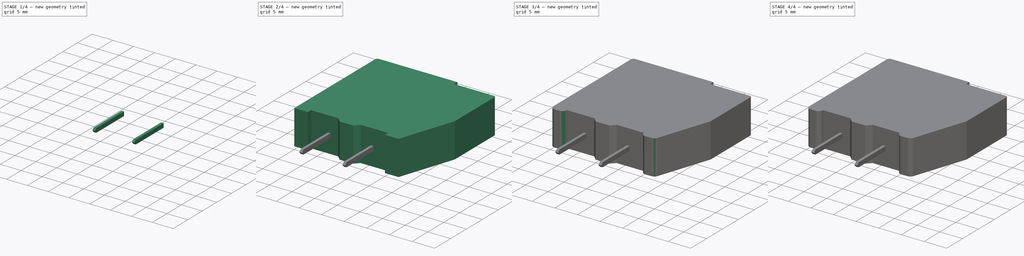
[diagram: build sequence overview — one tinted view per stage of 4, left to right]
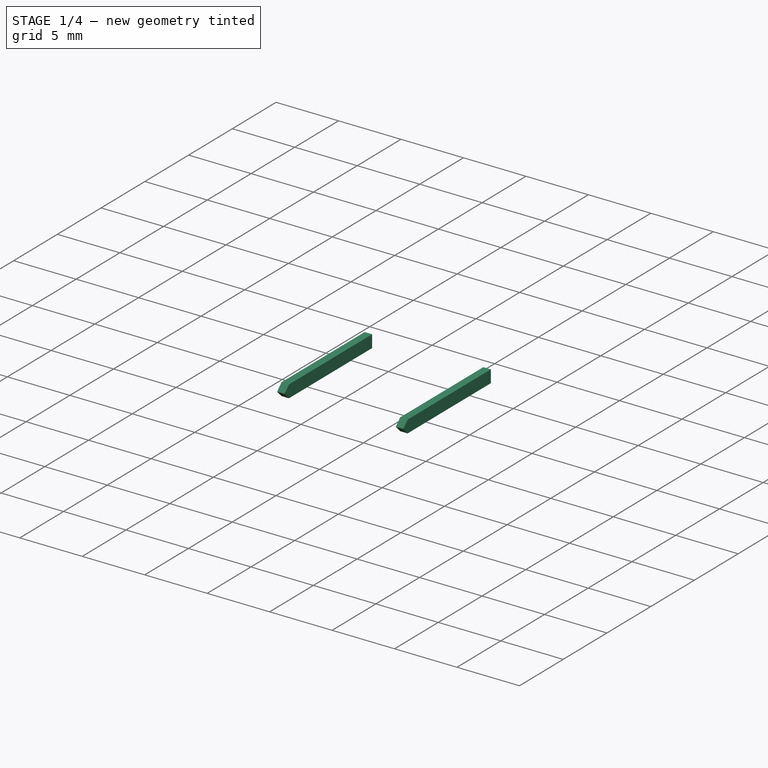
[diagram: stage 1 of 4 — iso view after this stage's code; geometry added in this stage tinted green]
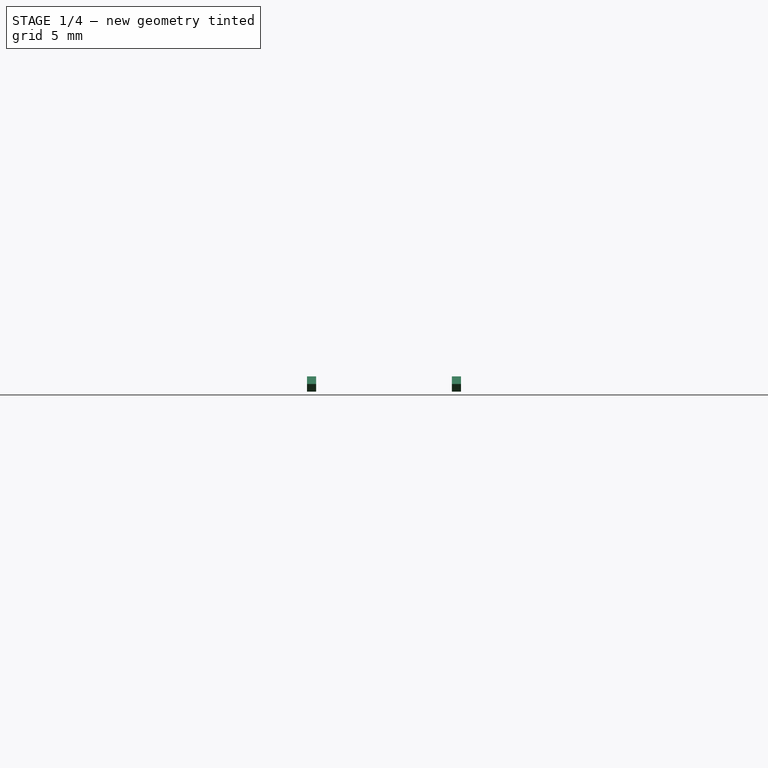
[diagram: stage 1 of 4 — front view after this stage's code; geometry added in this stage tinted green]
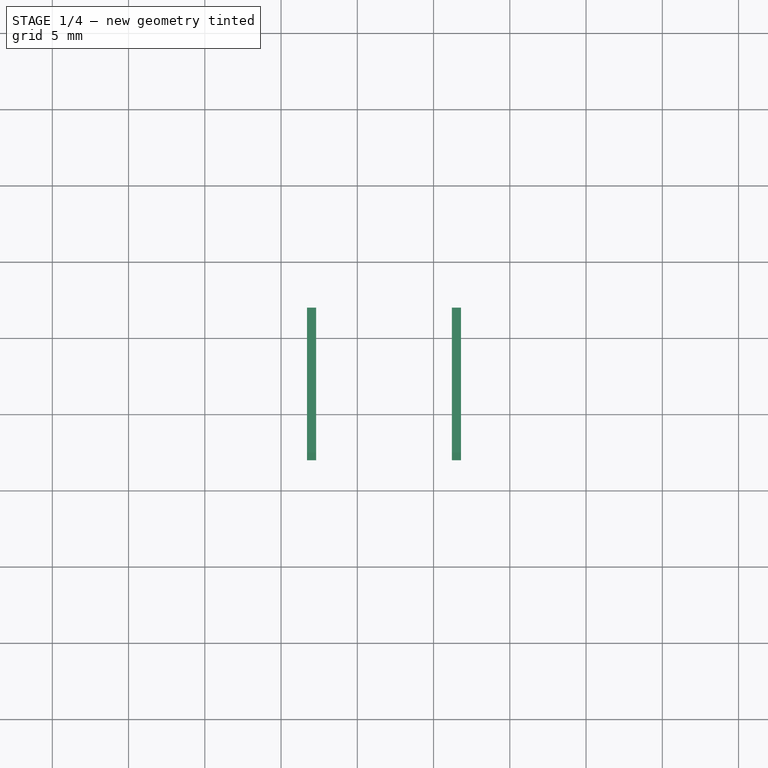
[diagram: stage 1 of 4 — top view after this stage's code; geometry added in this stage tinted green]
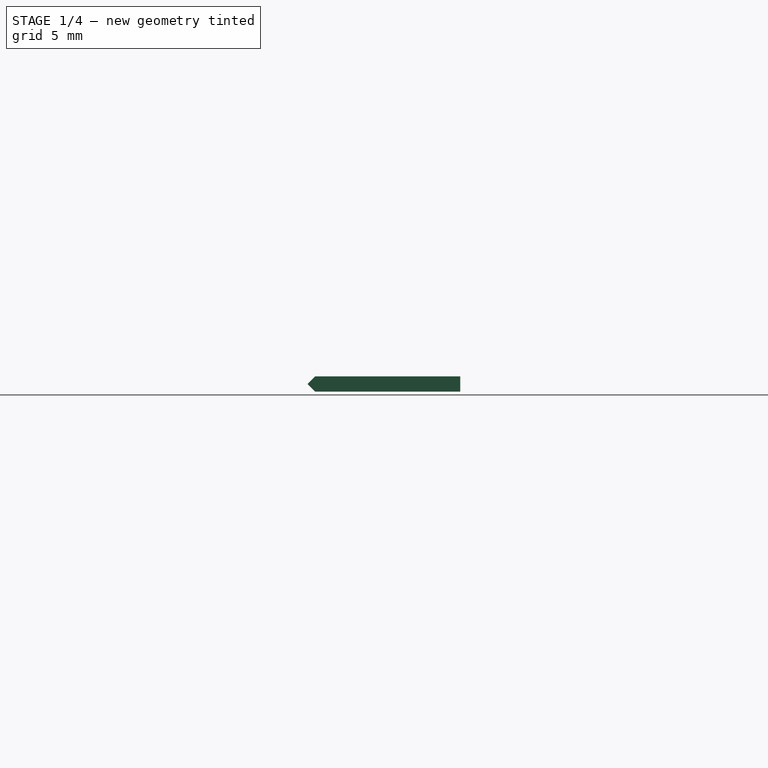
[diagram: stage 1 of 4 — right view after this stage's code; geometry added in this stage tinted green]
FCSTD DOCUMENT  (FreeCAD 0.18R4 (GitTag))
Label: connectorDG107V_7_62-01P_14_00AH
License: All rights reserved
LicenseURL: http://en.wikipedia.org/wiki/All_rights_reserved
objects: Sketcher::SketchObject×4, PartDesign::Pad×2, PartDesign::Fillet×2, PartDesign::Chamfer×2, PartDesign::Pocket×2, Part::FeaturePython×2, PartDesign::Draft×1, Spreadsheet::Sheet×1, App::DocumentObjectGroup×1
note: 19 computed .brp shape members not serialized (recipe doc carries the construction recipe); baked Part::Feature solids carry a one-line shape summary decoded from their .brp

FEATURE [App::DocumentObjectGroup] Group  label="body"
  Group = -> [Pad,Fillet,Chamfer,Fillet001,Pocket,Pocket001,Draft,Array]
FEATURE [Sketcher::SketchObject] Sketch004
  MapMode = 5
  Placement = pos=(0,2,0) rot=(1,0,0;1.5708rad)
  sketch-geometry (12):
    g0: LineSegment StartX=6.7 StartY=4.15 StartZ=0 EndX=7.3 EndY=4.15 EndZ=0
    g1: LineSegment StartX=7.3 StartY=4.15 StartZ=0 EndX=7.3 EndY=3.15 EndZ=0
    g2: LineSegment StartX=7.3 StartY=3.15 StartZ=0 EndX=6.7 EndY=3.15 EndZ=0
    g3: LineSegment StartX=6.7 StartY=3.15 StartZ=0 EndX=6.7 EndY=4.15 EndZ=0
    g4: LineSegment StartX=16.2 StartY=4.15 StartZ=0 EndX=16.8 EndY=4.15 EndZ=0
    g5: LineSegment StartX=16.8 StartY=4.15 StartZ=0 EndX=16.8 EndY=3.15 EndZ=0
    g6: LineSegment StartX=16.8 StartY=3.15 StartZ=0 EndX=16.2 EndY=3.15 EndZ=0
    g7: LineSegment StartX=16.2 StartY=3.15 StartZ=0 EndX=16.2 EndY=4.15 EndZ=0
    g8: GeomPoint [constr] X=7 Y=3.15 Z=0
    g9: GeomPoint [constr] X=16.5 Y=3.15 Z=0
    g10: LineSegment [constr] StartX=7.3 StartY=3.15 StartZ=0 EndX=16.2 EndY=3.15 EndZ=0
    g11: GeomPoint [constr] X=6.7 Y=3.65 Z=0
  constraints (32):
    c: Coincident(g0,g1)
    c: Coincident(g1,g2)
    c: Coincident(g2,g3)
    c: Coincident(g3,g0)
    c: Horizontal(g0)
    c: Horizontal(g2)
    c: Vertical(g1)
    c: Vertical(g3)
    c: Coincident(g4,g5)
    c: Coincident(g5,g6)
    c: Coincident(g6,g7)
    c: Coincident(g7,g4)
    c: Horizontal(g4)
    c: Horizontal(g6)
    c: Vertical(g5)
    c: Vertical(g7)
    c: DistanceY(g1,g1) = 1
    c: Equal(g1,g7)
    c: Equal(g0,g4)
    c: DistanceX(g0,g0) = 0.6
    c: PointOnObject(g8,g2)
    c: DistanceX(g2,g8) = 0.3
    c: DistanceX(g-1,g8) = 7
    c: PointOnObject(g9,g6)
    c: DistanceX(g6,g9) = 0.3
    c: DistanceX(g8,g9) = 9.5
    c: Coincident(g10,g1)
    c: Coincident(g10,g6)
    c: Horizontal(g10)
    c: PointOnObject(g11,g3)
    c: DistanceY(g11,g0) = 0.5
    c: DistanceY(g-1,g11) = 3.65
FEATURE [PartDesign::Pad] Pad001
  Length = 10
  Length2 = 100
  Placement = pos=(0,2,0) rot=(1,0,0;1.5708rad)
  Profile = -> Sketch004
  Type = 0
FEATURE [PartDesign::Chamfer] Chamfer001
  Base = -> Pad001 [Edge10,Edge4,Edge22,Edge16]
  Placement = pos=(0,2,0) rot=(1,0,0;1.5708rad)
  Size = 0.49
FEATURE [Part::FeaturePython] Array001  # Draft array (typed FeaturePython)
  Angle = 360
  ArrayType = 0
  Axis = (0,0,1)
  Base = -> Chamfer001
  Center = (0,0,0)
  Fuse = false
  IntervalAxis = (0,0,0)
  IntervalX = (1,0,0)
  IntervalY = (0,1,0)
  IntervalZ = (0,0,7.62)
  NumberPolar = 1
  NumberX = 1
  NumberY = 1
  NumberZ = 1
  expr: NumberZ = Spreadsheet.B1
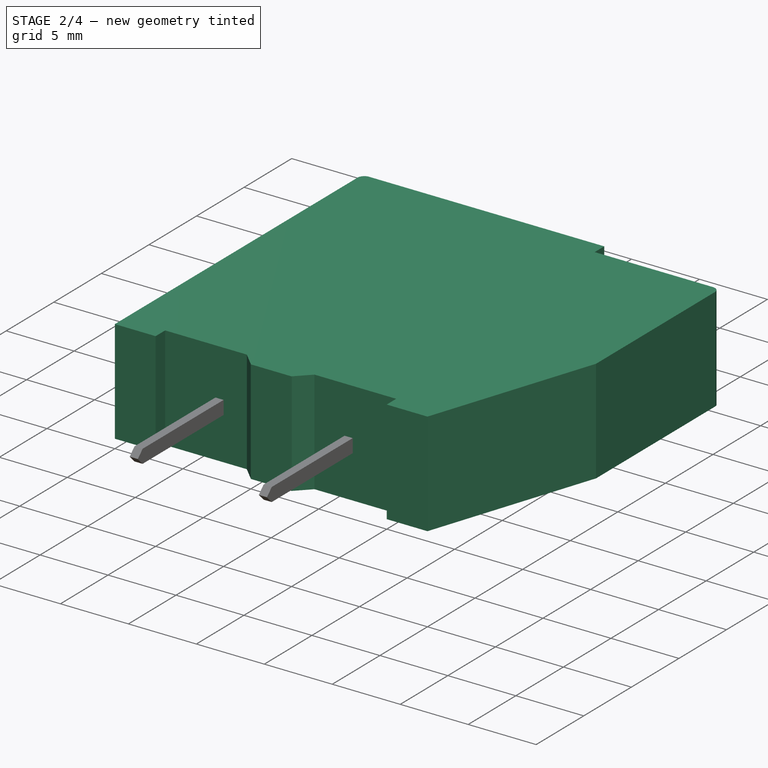
[diagram: stage 2 of 4 — iso view after this stage's code; geometry added in this stage tinted green]
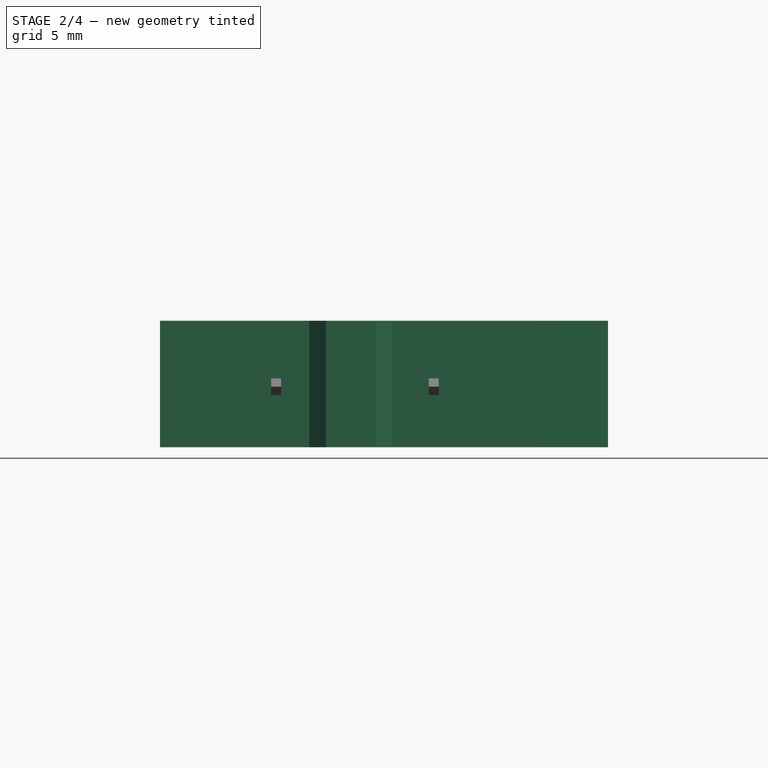
[diagram: stage 2 of 4 — front view after this stage's code; geometry added in this stage tinted green]
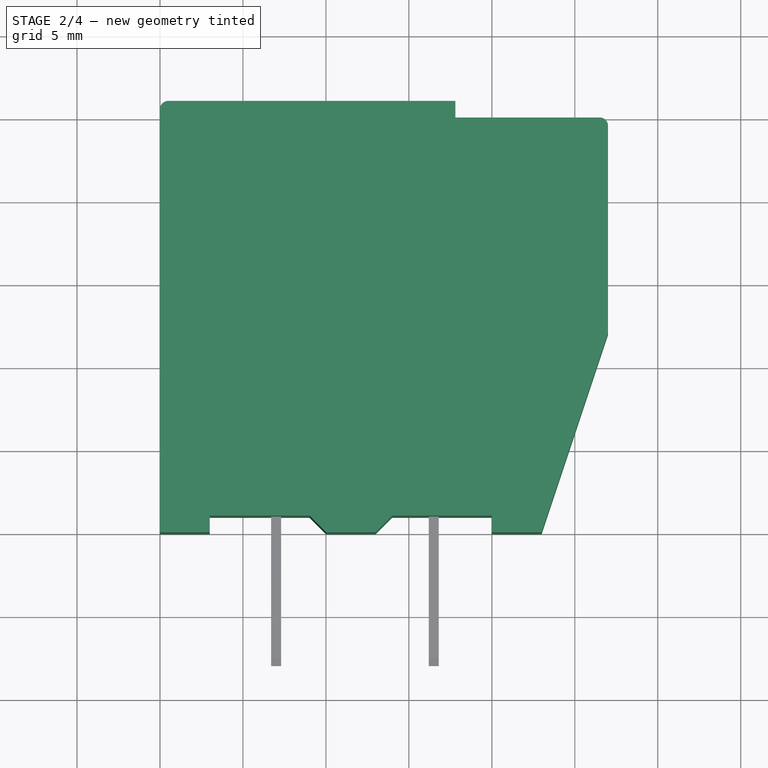
[diagram: stage 2 of 4 — top view after this stage's code; geometry added in this stage tinted green]
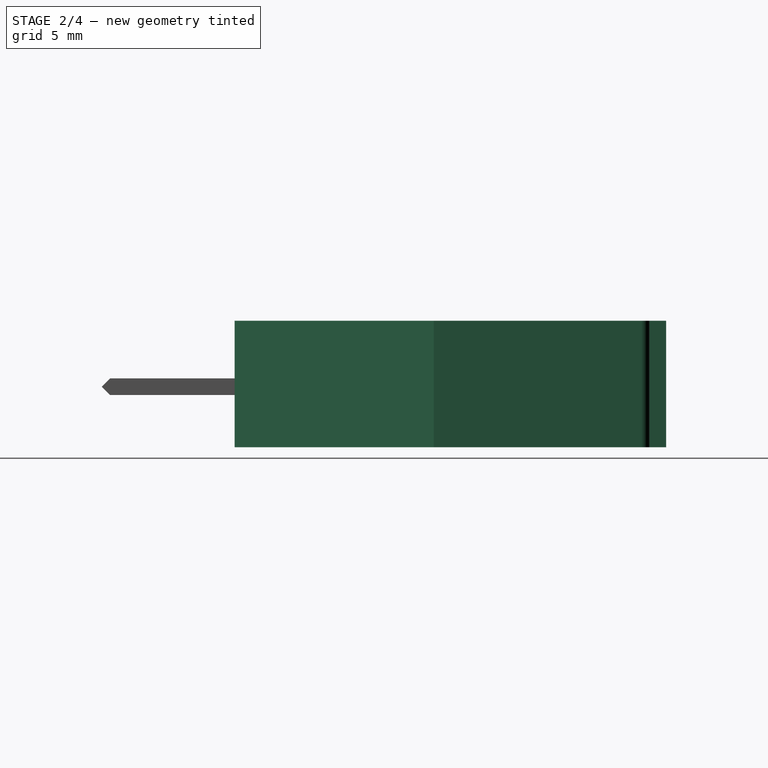
[diagram: stage 2 of 4 — right view after this stage's code; geometry added in this stage tinted green]
FEATURE [Sketcher::SketchObject] Sketch
  MapMode = 5
  sketch-geometry (15):
    g0: LineSegment StartX=0 StartY=26 StartZ=0 EndX=0 EndY=0 EndZ=0
    g1: LineSegment StartX=0 StartY=0 StartZ=0 EndX=3 EndY=0 EndZ=0
    g2: LineSegment StartX=3 StartY=0 StartZ=0 EndX=3 EndY=1 EndZ=0
    g3: LineSegment StartX=3 StartY=1 StartZ=0 EndX=10 EndY=1 EndZ=0
    g4: LineSegment StartX=10 StartY=1 StartZ=0 EndX=10 EndY=0 EndZ=0
    g5: LineSegment StartX=10 StartY=0 StartZ=0 EndX=13 EndY=0 EndZ=0
    g6: LineSegment StartX=13 StartY=0 StartZ=0 EndX=13 EndY=1 EndZ=0
    g7: LineSegment StartX=13 StartY=1 StartZ=0 EndX=20 EndY=1 EndZ=0
    g8: LineSegment StartX=20 StartY=1 StartZ=0 EndX=20 EndY=0 EndZ=0
    g9: LineSegment StartX=20 StartY=0 StartZ=0 EndX=23 EndY=0 EndZ=0
    g10: LineSegment StartX=23 StartY=0 StartZ=0 EndX=27 EndY=12 EndZ=0
    g11: LineSegment StartX=27 StartY=12 StartZ=0 EndX=27 EndY=25 EndZ=0
    g12: LineSegment StartX=27 StartY=25 StartZ=0 EndX=17.8 EndY=25 EndZ=0
    g13: LineSegment StartX=17.8 StartY=25 StartZ=0 EndX=17.8 EndY=26 EndZ=0
    g14: LineSegment StartX=17.8 StartY=26 StartZ=0 EndX=0 EndY=26 EndZ=0
  constraints (44):
    c: PointOnObject(g0,g-2)
    c: Coincident(g0,g-1)
    c: Coincident(g0,g1)
    c: Coincident(g1,g2)
    c: Coincident(g2,g3)
    c: Horizontal(g3)
    c: Coincident(g3,g4)
    c: PointOnObject(g4,g-1)
    c: Coincident(g4,g5)
    c: PointOnObject(g5,g-1)
    c: Coincident(g5,g6)
    c: Coincident(g6,g7)
    c: Horizontal(g7)
    c: Coincident(g7,g8)
    c: PointOnObject(g8,g-1)
    c: Vertical(g8)
    c: Coincident(g8,g9)
    c: Coincident(g9,g10)
    c: Coincident(g10,g11)
    c: Vertical(g11)
    c: Coincident(g11,g12)
    c: Horizontal(g12)
    c: Coincident(g12,g13)
    c: Coincident(g13,g14)
    c: Coincident(g14,g0)
    c: Horizontal(g14)
    c: Horizontal(g1)
    c: Vertical(g2)
    c: Vertical(g4)
    c: Horizontal(g9)
    c: Vertical(g13)
    c: DistanceY(g0,g0) = 26
    c: DistanceX(g0,g11) = 27
    c: Vertical(g6)
    c: DistanceY(g13,g13) = 1
    c: DistanceX(g14,g14) = 17.8
    c: Equal(g2,g6)
    c: DistanceY(g2,g2) = 1
    c: Equal(g1,g5)
    c: Equal(g5,g9)
    c: DistanceX(g1,g1) = 3
    c: DistanceX(g3,g3) = 7
    c: DistanceY(g11,g11) = 13
    c: Equal(g7,g3)
FEATURE [PartDesign::Pad] Pad
  Length = 7.62
  Length2 = 100
  Profile = -> Sketch
  Type = 0
FEATURE [PartDesign::Fillet] Fillet
  Base = -> Pad [Edge35,Edge1]
  Radius = 0.5
FEATURE [PartDesign::Chamfer] Chamfer
  Base = -> Fillet [Edge42,Edge48]
  Size = 0.99
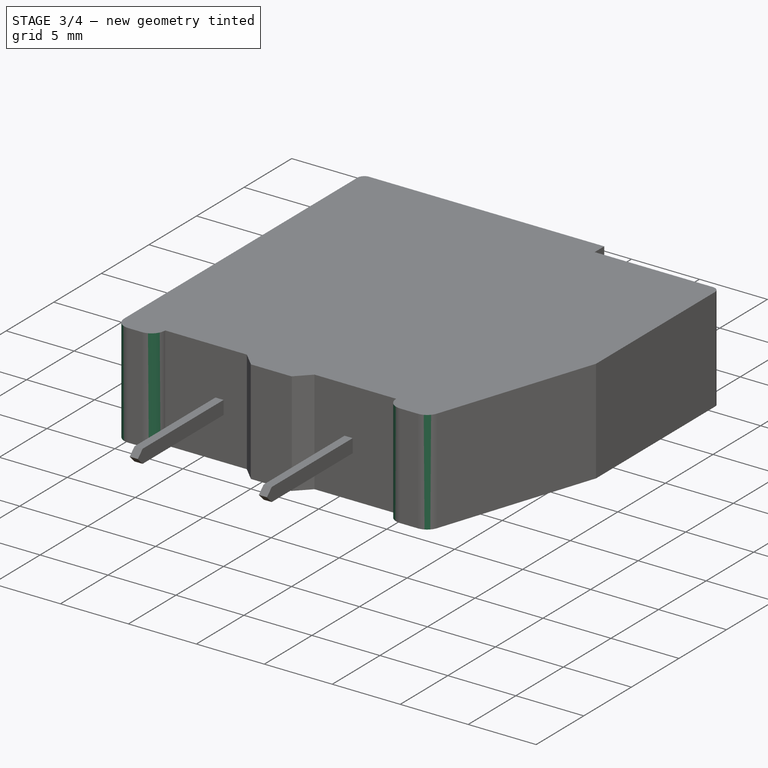
[diagram: stage 3 of 4 — iso view after this stage's code; geometry added in this stage tinted green]
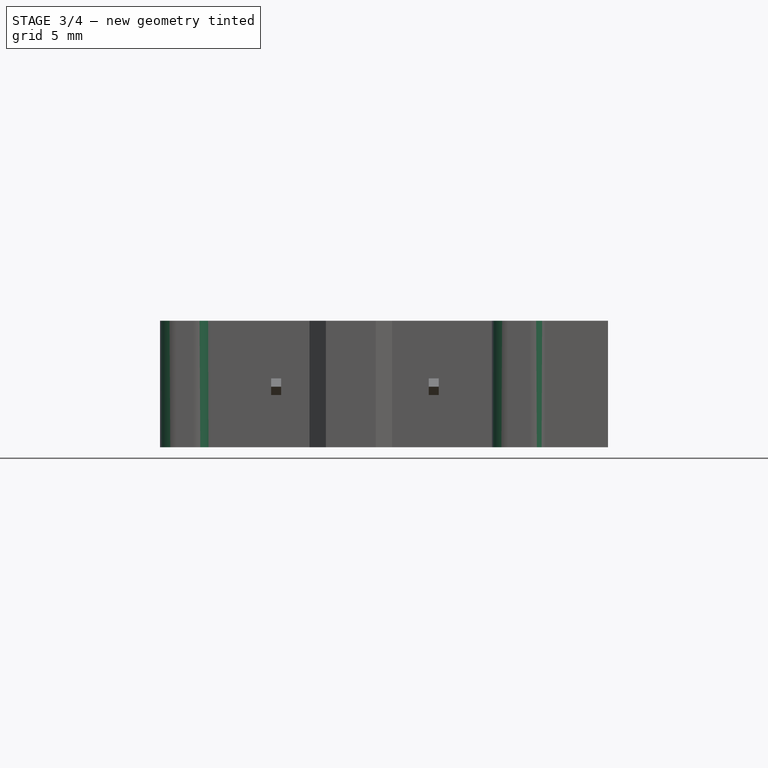
[diagram: stage 3 of 4 — front view after this stage's code; geometry added in this stage tinted green]
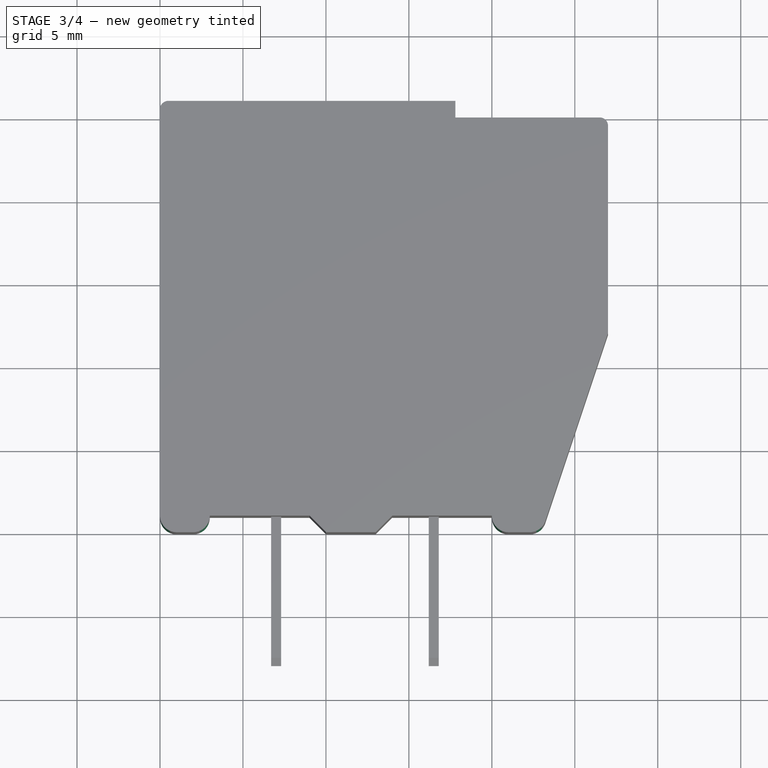
[diagram: stage 3 of 4 — top view after this stage's code; geometry added in this stage tinted green]
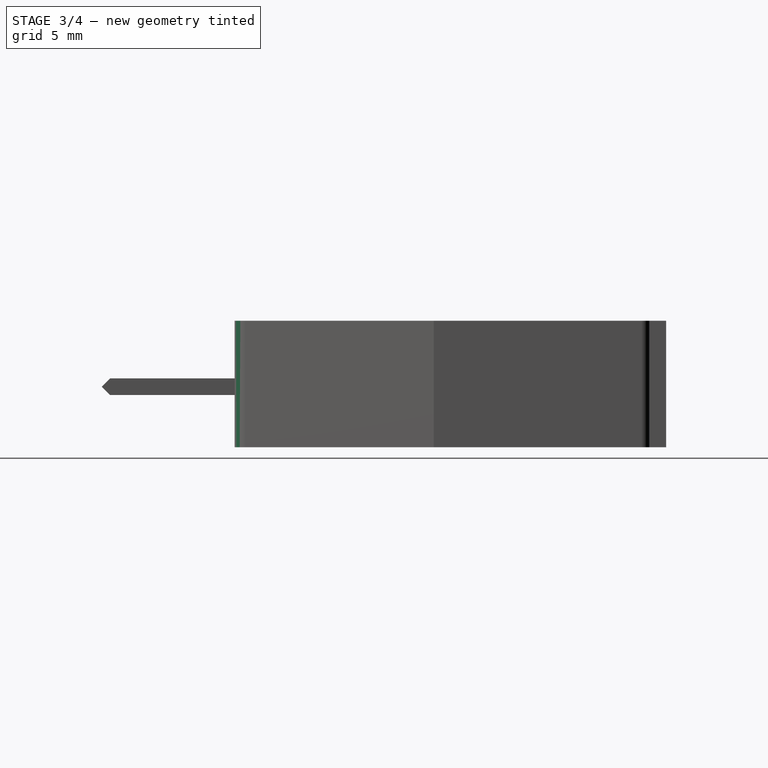
[diagram: stage 3 of 4 — right view after this stage's code; geometry added in this stage tinted green]
FEATURE [PartDesign::Fillet] Fillet001
  Base = -> Chamfer [Edge25,Edge29,Edge51,Edge47]
  Radius = 0.999
FEATURE [Sketcher::SketchObject] Sketch001
  MapMode = 5
  Placement = pos=(0,26,0) rot=(0,0.707107,0.707107;3.14159rad)
  Support = -> [Fillet001]
  sketch-geometry (1):
    g0: Circle CenterX=-15 CenterY=3.8 CenterZ=0 NormalX=0 NormalY=0 NormalZ=1 AngleXU=0 Radius=2
  constraints (3):
    c: Radius(g0) = 2
    c: DistanceY(g-1,g0) = 3.8
    c: DistanceX(g0,g-1) = 15
FEATURE [PartDesign::Pocket] Pocket
  Length = 5
  Length2 = 100
  Profile = -> Sketch001
  Type = 0
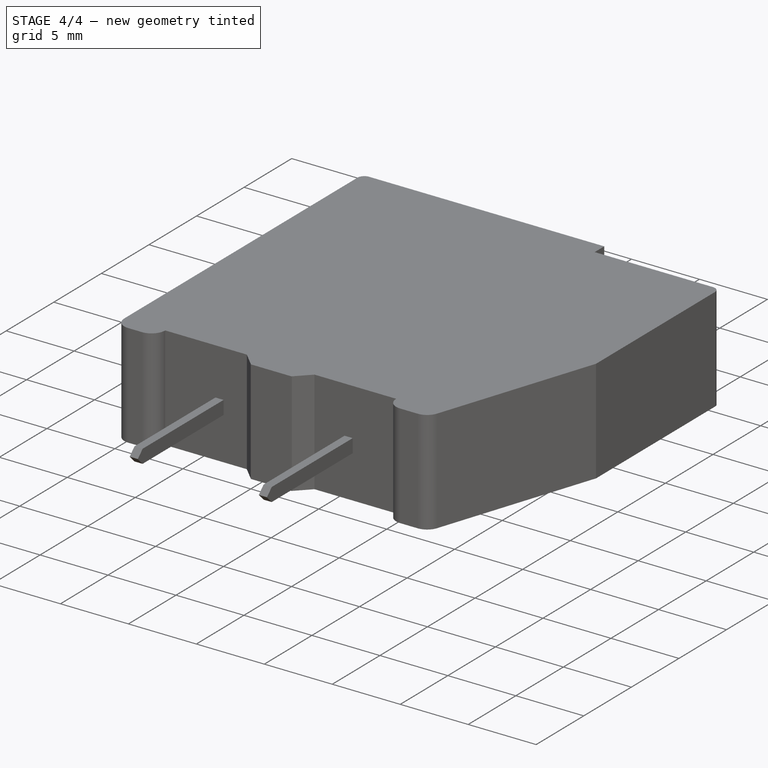
[diagram: stage 4 of 4 — iso view after this stage's code; geometry added in this stage tinted green]
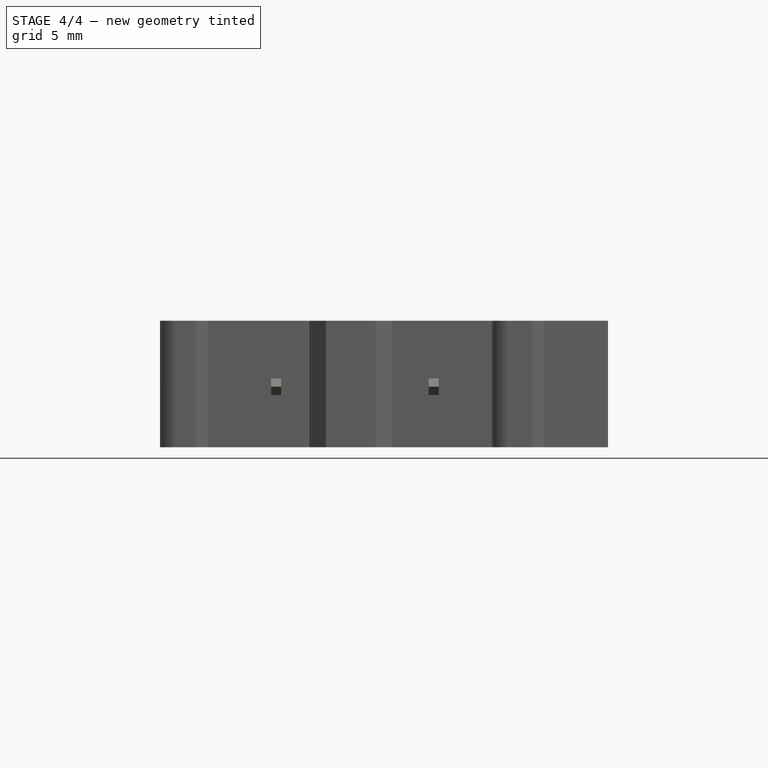
[diagram: stage 4 of 4 — front view after this stage's code; geometry added in this stage tinted green]
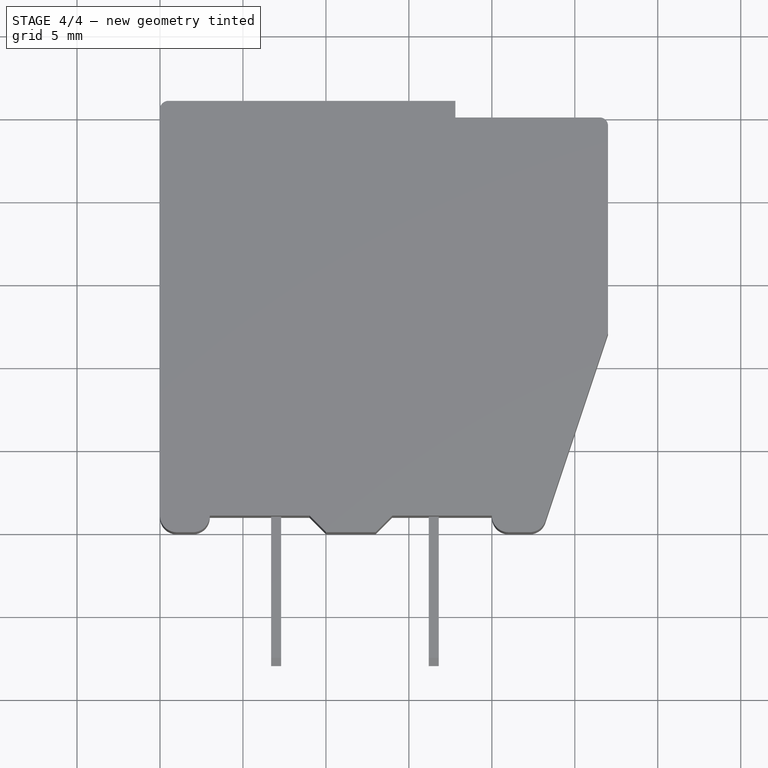
[diagram: stage 4 of 4 — top view after this stage's code; geometry added in this stage tinted green]
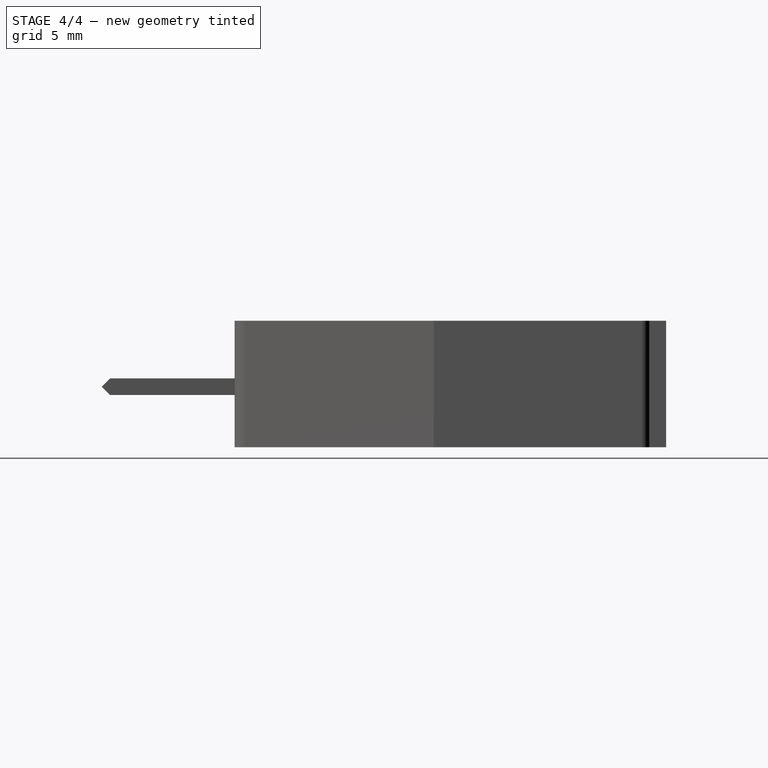
[diagram: stage 4 of 4 — right view after this stage's code; geometry added in this stage tinted green]
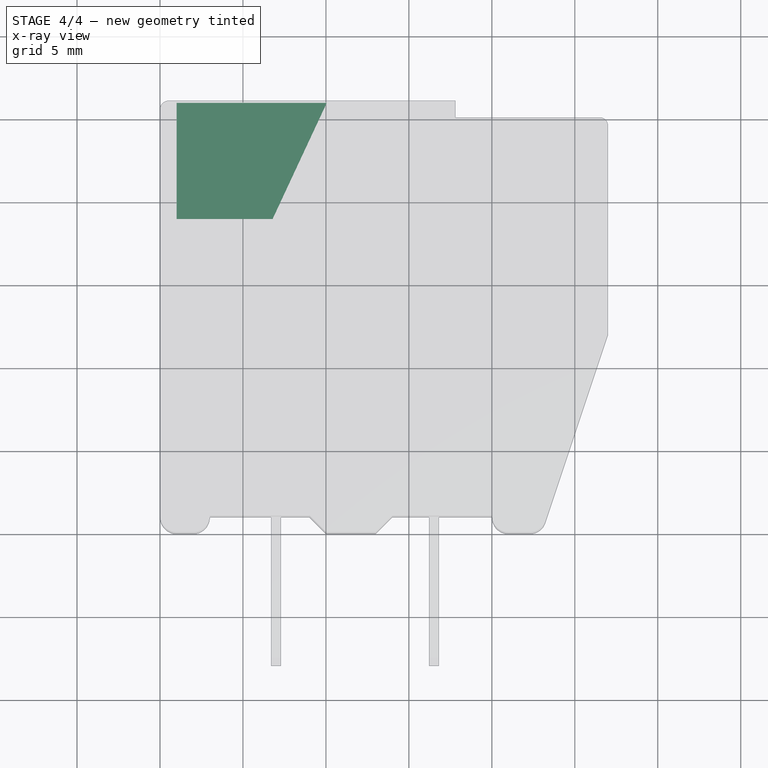
[diagram: stage 4 of 4 — x-ray composite at the top view; earlier geometry ghosted, this stage's added geometry solid]
FEATURE [Sketcher::SketchObject] Sketch003
  MapMode = 5
  Placement = pos=(0,26,0) rot=(0,0.707107,0.707107;3.14159rad)
  Support = -> [Pocket]
  sketch-geometry (5):
    g0: LineSegment StartX=-10.0553 StartY=6.8 StartZ=0 EndX=-1 EndY=6.8 EndZ=0
    g1: LineSegment StartX=-1 StartY=6.8 StartZ=0 EndX=-1 EndY=0.8 EndZ=0
    g2: LineSegment StartX=-1 StartY=0.8 StartZ=0 EndX=-10.0553 EndY=0.8 EndZ=0
    g3: LineSegment StartX=-10.0553 StartY=0.8 StartZ=0 EndX=-10.0553 EndY=6.8 EndZ=0
    g4: GeomPoint [constr] X=-1 Y=3.8 Z=0
  constraints (13):
    c: Coincident(g0,g1)
    c: Coincident(g1,g2)
    c: Coincident(g2,g3)
    c: Coincident(g3,g0)
    c: Horizontal(g0)
    c: Horizontal(g2)
    c: Vertical(g1)
    c: Vertical(g3)
    c: DistanceY(g3,g3) = 6
    c: PointOnObject(g4,g1)
    c: DistanceY(g1,g4) = 3
    c: DistanceY(g-1,g4) = 3.8
    c: DistanceX(g1,g-1) = 1
FEATURE [PartDesign::Pocket] Pocket001
  Length = 7
  Length2 = 100
  Profile = -> Sketch003
  Type = 0
FEATURE [PartDesign::Draft] Draft
  Angle = 25
  Base = -> Pocket001 [Face29]
  NeutralPlane = -> Pocket001 [Face13]
  PullDirection = -> Pocket001 [Edge75]
  Reversed = true
FEATURE [Spreadsheet::Sheet] Spreadsheet
  cells = A1=Number; B1=1
FEATURE [Part::FeaturePython] Array  # Draft array (typed FeaturePython)
  Angle = 360
  ArrayType = 0
  Axis = (0,0,1)
  Base = -> Draft
  Center = (0,0,0)
  Fuse = false
  IntervalAxis = (0,0,0)
  IntervalX = (1,0,0)
  IntervalY = (0,1,0)
  IntervalZ = (0,0,7.62)
  NumberPolar = 1
  NumberX = 1
  NumberY = 1
  NumberZ = 1
  expr: NumberZ = Spreadsheet.B1
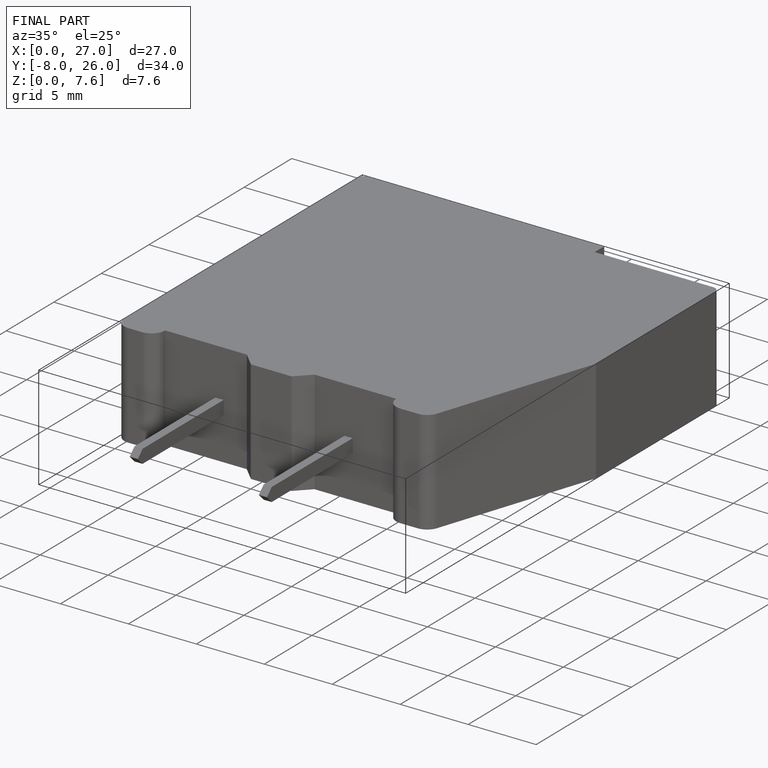
[diagram: finished part — iso view with bounding-box wireframe]
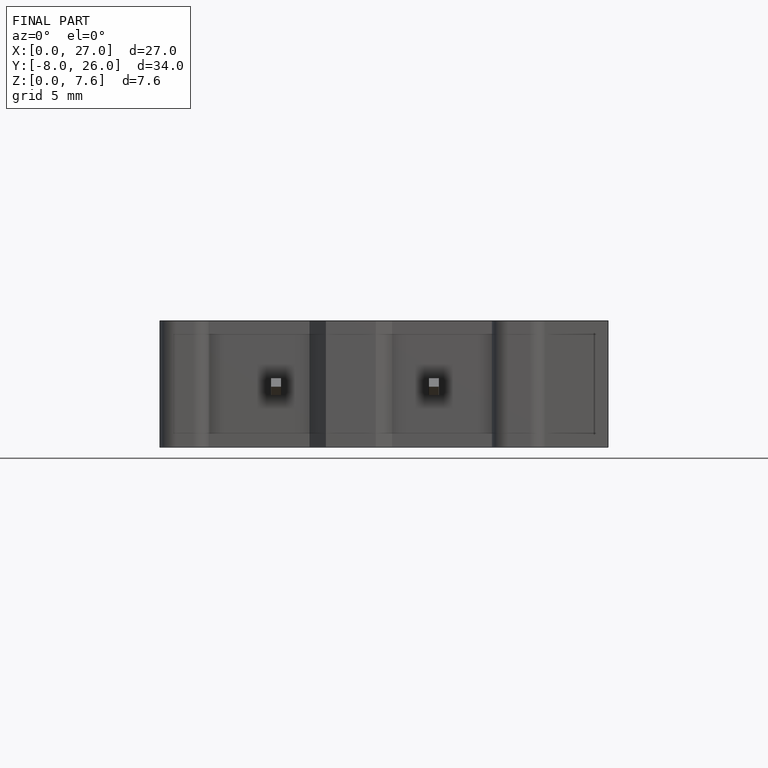
[diagram: finished part — front view with bounding-box wireframe]
